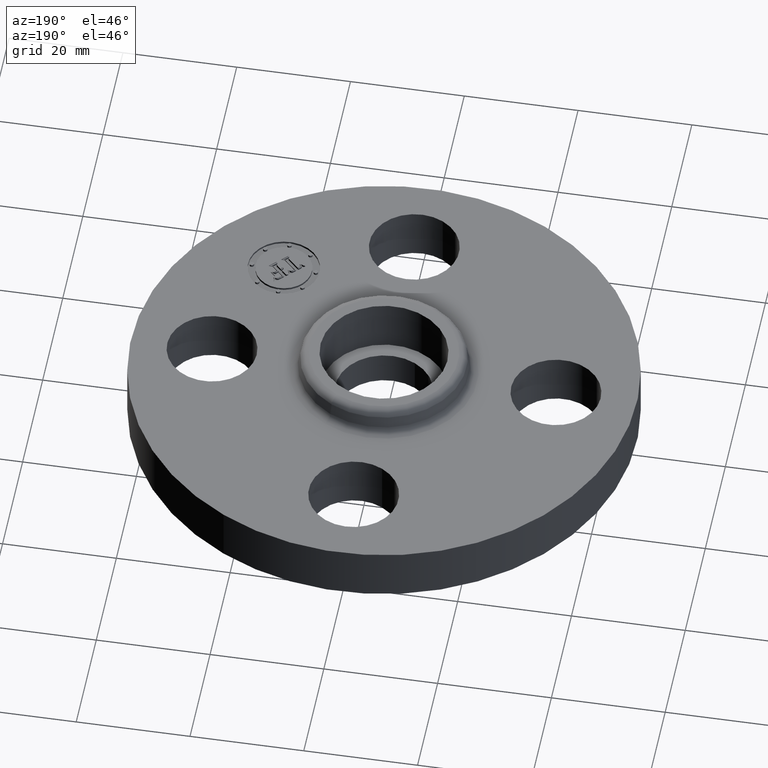
[diagram: clean part render]
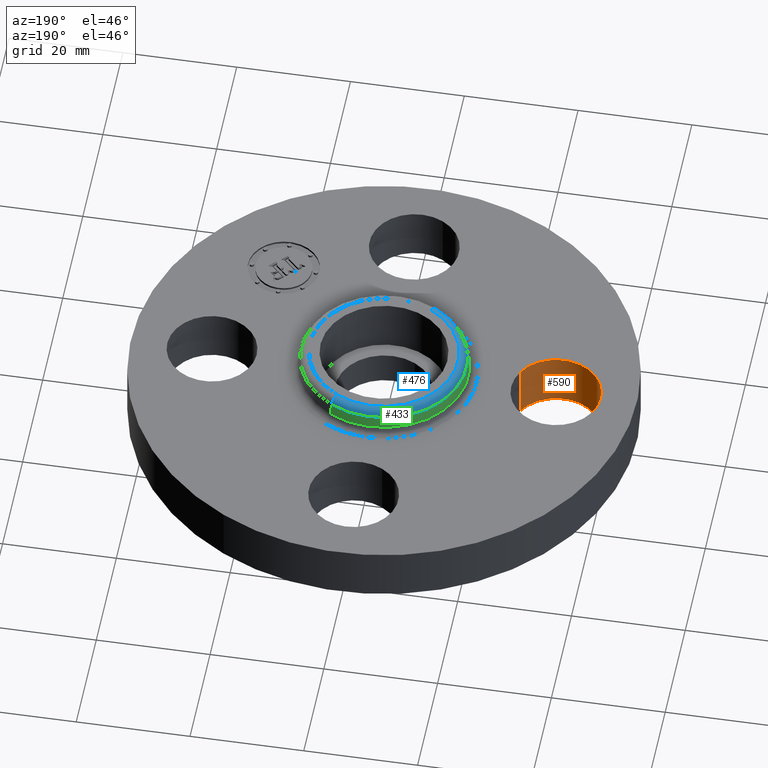
[diagram: same view with three faces highlighted in distinct colors, each labeled with its STEP entity id]
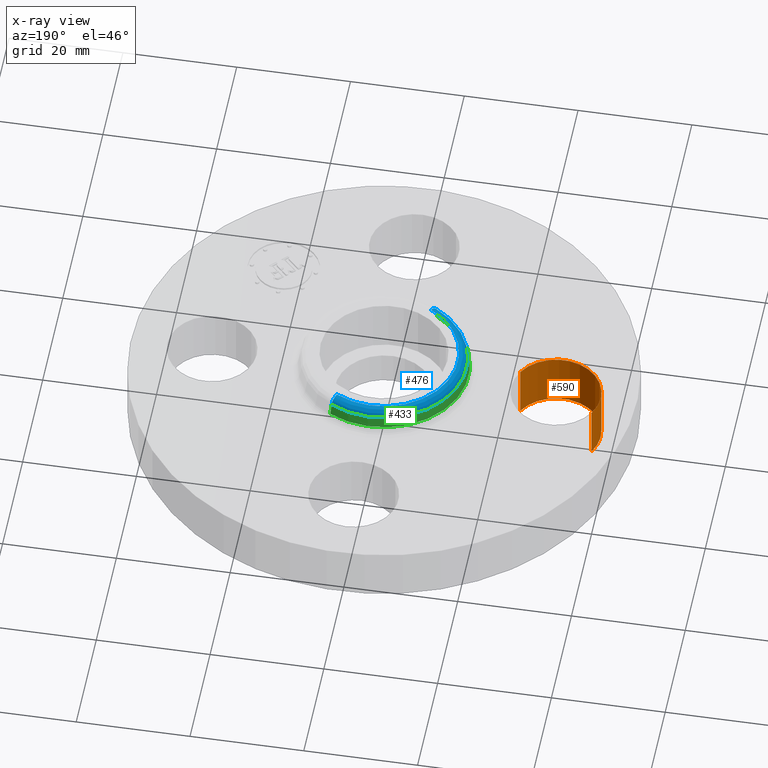
[diagram: x-ray of the same camera — body ghosted, the three highlighted faces saturated]
A machine part, auxiliary view with three faces highlighted in distinct colors.
The next image is the same camera in x-ray (body ghosted, the three faces saturated) — at least one of them is partly hidden behind the body in this view.
Their STEP definitions:

[orange] entity #590 — the highlighted cylindrical surface (partial cylindrical patch) has radius 7.874 mm, axis along (-0, 0, -1).
#256=AXIS2_PLACEMENT_3D('Circle Axis2P3D',#254,#255,$) ;
#551=AXIS2_PLACEMENT_3D('Cylinder Axis2P3D',#548,#549,#550) ;
#581=AXIS2_PLACEMENT_3D('Circle Axis2P3D',#579,#580,$) ;
#254=CARTESIAN_POINT('Axis2P3D Location',(-1.19,-1.39870617276E-016,0.)) ;
#258=CARTESIAN_POINT('Vertex',(-0.917949405818,-0.148621916968,0.)) ;
#260=CARTESIAN_POINT('Vertex',(-1.46205059419,0.148621916968,0.)) ;
#548=CARTESIAN_POINT('Axis2P3D Location',(-1.19,-1.45732969099E-016,0.376062992128)) ;
#553=CARTESIAN_POINT('Line Origine',(-1.46205059419,0.148621916968,0.190000000001)) ;
#557=CARTESIAN_POINT('Vertex',(-1.46205059419,0.148621916968,0.380000000002)) ;
#560=CARTESIAN_POINT('Line Origine',(-0.917949405818,-0.148621916968,0.190000000001)) ;
#564=CARTESIAN_POINT('Vertex',(-0.917949405818,-0.148621916968,0.380000000002)) ;
#579=CARTESIAN_POINT('Axis2P3D Location',(-1.19,-1.45732969099E-016,0.380000000002)) ;
#255=DIRECTION('Axis2P3D Direction',(0.,0.,-0.0393700787402)) ;
#549=DIRECTION('Axis2P3D Direction',(-0.,0.,-0.0393700787402)) ;
#550=DIRECTION('Axis2P3D XDirection',(0.0345504945626,-0.0188750212049,-0.)) ;
#554=DIRECTION('Vector Direction',(0.,0.,-0.0393700787402)) ;
#561=DIRECTION('Vector Direction',(0.,0.,-0.0393700787402)) ;
#580=DIRECTION('Axis2P3D Direction',(-0.,0.,-0.0393700787402)) ;
#555=VECTOR('Line Direction',#554,0.0393700787402) ;
#562=VECTOR('Line Direction',#561,0.0393700787402) ;
#585=ORIENTED_EDGE('',*,*,#566,.F.) ;
#586=ORIENTED_EDGE('',*,*,#262,.T.) ;
#587=ORIENTED_EDGE('',*,*,#559,.T.) ;
#588=ORIENTED_EDGE('',*,*,#583,.F.) ;
#590=ADVANCED_FACE('PartBody',(#589),#552,.F.) ;
#257=CIRCLE('generated circle',#256,0.310000000001) ;
#582=CIRCLE('generated circle',#581,0.310000000001) ;
#552=CYLINDRICAL_SURFACE('generated cylinder',#551,0.310000000001) ;
#262=EDGE_CURVE('',#259,#261,#257,.T.) ;
#559=EDGE_CURVE('',#261,#558,#556,.F.) ;
#566=EDGE_CURVE('',#259,#565,#563,.F.) ;
#583=EDGE_CURVE('',#565,#558,#582,.T.) ;
#584=EDGE_LOOP('',(#585,#586,#587,#588)) ;
#589=FACE_OUTER_BOUND('',#584,.T.) ;
#556=LINE('Line',#553,#555) ;
#563=LINE('Line',#560,#562) ;
#259=VERTEX_POINT('',#258) ;
#261=VERTEX_POINT('',#260) ;
#558=VERTEX_POINT('',#557) ;
#565=VERTEX_POINT('',#564) ;

[blue] entity #476 — the highlighted toroidal blend (fillet) surface has major radius 13.028 mm and minor (blend) radius 1.524 mm.
#424=AXIS2_PLACEMENT_3D('Circle Axis2P3D',#422,#423,$) ;
#437=AXIS2_PLACEMENT_3D('Torus Axis2P3D',#434,#435,#436) ;
#441=AXIS2_PLACEMENT_3D('Circle Axis2P3D',#439,#440,$) ;
#455=AXIS2_PLACEMENT_3D('Circle Axis2P3D',#453,#454,$) ;
#467=AXIS2_PLACEMENT_3D('Circle Axis2P3D',#465,#466,$) ;
#400=CARTESIAN_POINT('Vertex',(0.274233148773,0.501980411715,0.510418890662)) ;
#407=CARTESIAN_POINT('Vertex',(-0.274233148773,-0.501980411715,0.510418890662)) ;
#422=CARTESIAN_POINT('Axis2P3D Location',(0.,0.,0.510418890662)) ;
#434=CARTESIAN_POINT('Axis2P3D Location',(0.,0.,0.500000000002)) ;
#439=CARTESIAN_POINT('Axis2P3D Location',(0.245904629528,0.450125405063,0.500000000002)) ;
#443=CARTESIAN_POINT('Vertex',(0.245904629528,0.450125405063,0.560000000002)) ;
#450=CARTESIAN_POINT('Vertex',(-0.245904629528,-0.450125405063,0.560000000002)) ;
#453=CARTESIAN_POINT('Axis2P3D Location',(-0.245904629528,-0.450125405063,0.500000000002)) ;
#465=CARTESIAN_POINT('Axis2P3D Location',(0.,0.,0.560000000002)) ;
#423=DIRECTION('Axis2P3D Direction',(0.,0.,-0.0393700787402)) ;
#435=DIRECTION('Axis2P3D Direction',(0.,0.,-0.0393700787402)) ;
#436=DIRECTION('Axis2P3D XDirection',(-0.0188750212049,-0.0345504945626,0.)) ;
#440=DIRECTION('Axis2P3D Direction',(-0.0345504945626,0.0188750212049,0.)) ;
#454=DIRECTION('Axis2P3D Direction',(0.0345504945626,-0.0188750212049,0.)) ;
#466=DIRECTION('Axis2P3D Direction',(0.,0.,-0.0393700787402)) ;
#471=ORIENTED_EDGE('',*,*,#426,.F.) ;
#472=ORIENTED_EDGE('',*,*,#457,.T.) ;
#473=ORIENTED_EDGE('',*,*,#469,.T.) ;
#474=ORIENTED_EDGE('',*,*,#445,.F.) ;
#476=ADVANCED_FACE('PartBody',(#475),#438,.T.) ;
#425=CIRCLE('generated circle',#424,0.572003630785) ;
#442=CIRCLE('generated circle',#441,0.0600000000002) ;
#456=CIRCLE('generated circle',#455,0.0600000000002) ;
#468=CIRCLE('generated circle',#467,0.512915165604) ;
#438=TOROIDAL_SURFACE('homeo Torus',#437,0.512915165604,0.0600000000002) ;
#426=EDGE_CURVE('',#408,#401,#425,.T.) ;
#445=EDGE_CURVE('',#401,#444,#442,.F.) ;
#457=EDGE_CURVE('',#408,#451,#456,.F.) ;
#469=EDGE_CURVE('',#451,#444,#468,.T.) ;
#470=EDGE_LOOP('',(#471,#472,#473,#474)) ;
#475=FACE_OUTER_BOUND('',#470,.T.) ;
#401=VERTEX_POINT('',#400) ;
#408=VERTEX_POINT('',#407) ;
#444=VERTEX_POINT('',#443) ;
#451=VERTEX_POINT('',#450) ;

[green] entity #433 — the highlighted conical surface has half-angle 10 deg.
#381=AXIS2_PLACEMENT_3D('Circle Axis2P3D',#379,#380,$) ;
#394=AXIS2_PLACEMENT_3D('Cone Axis2P3D',#391,#392,#393) ;
#424=AXIS2_PLACEMENT_3D('Circle Axis2P3D',#422,#423,$) ;
#352=CARTESIAN_POINT('Vertex',(0.281066823783,0.514489369916,0.429581109342)) ;
#359=CARTESIAN_POINT('Vertex',(-0.281066823783,-0.514489369916,0.429581109342)) ;
#379=CARTESIAN_POINT('Axis2P3D Location',(0.,0.,0.429581109342)) ;
#391=CARTESIAN_POINT('Axis2P3D Location',(0.,0.,0.510418890662)) ;
#396=CARTESIAN_POINT('Line Origine',(0.277649986278,0.508234890815,0.470000000002)) ;
#400=CARTESIAN_POINT('Vertex',(0.274233148773,0.501980411715,0.510418890662)) ;
#407=CARTESIAN_POINT('Vertex',(-0.274233148773,-0.501980411715,0.510418890662)) ;
#410=CARTESIAN_POINT('Line Origine',(-0.277649986278,-0.508234890815,0.470000000002)) ;
#422=CARTESIAN_POINT('Axis2P3D Location',(0.,0.,0.510418890662)) ;
#380=DIRECTION('Axis2P3D Direction',(0.,0.,-0.0393700787402)) ;
#392=DIRECTION('Axis2P3D Direction',(0.,0.,-0.0393700787402)) ;
#393=DIRECTION('Axis2P3D XDirection',(-0.0188750212049,-0.0345504945626,0.)) ;
#397=DIRECTION('Vector Direction',(0.00327761303565,0.00599963041829,-0.03877195878)) ;
#411=DIRECTION('Vector Direction',(-0.00327761303565,-0.00599963041829,-0.03877195878)) ;
#423=DIRECTION('Axis2P3D Direction',(0.,0.,-0.0393700787402)) ;
#398=VECTOR('Line Direction',#397,0.0393700787402) ;
#412=VECTOR('Line Direction',#411,0.0393700787402) ;
#428=ORIENTED_EDGE('',*,*,#383,.F.) ;
#429=ORIENTED_EDGE('',*,*,#414,.T.) ;
#430=ORIENTED_EDGE('',*,*,#426,.T.) ;
#431=ORIENTED_EDGE('',*,*,#402,.F.) ;
#433=ADVANCED_FACE('PartBody',(#432),#395,.T.) ;
#382=CIRCLE('generated circle',#381,0.586257512692) ;
#425=CIRCLE('generated circle',#424,0.572003630785) ;
#395=CONICAL_SURFACE('Cone',#394,0.572003630785,0.174532925199) ;
#383=EDGE_CURVE('',#360,#353,#382,.T.) ;
#402=EDGE_CURVE('',#353,#401,#399,.F.) ;
#414=EDGE_CURVE('',#360,#408,#413,.F.) ;
#426=EDGE_CURVE('',#408,#401,#425,.T.) ;
#427=EDGE_LOOP('',(#428,#429,#430,#431)) ;
#432=FACE_OUTER_BOUND('',#427,.T.) ;
#399=LINE('Line',#396,#398) ;
#413=LINE('Line',#410,#412) ;
#353=VERTEX_POINT('',#352) ;
#360=VERTEX_POINT('',#359) ;
#401=VERTEX_POINT('',#400) ;
#408=VERTEX_POINT('',#407) ;